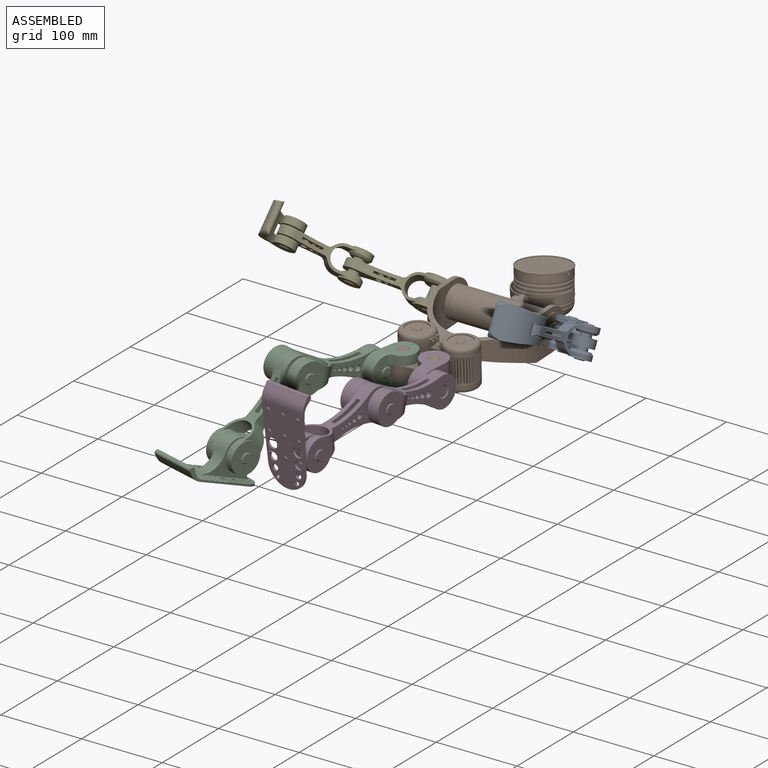
[diagram: assembled view]
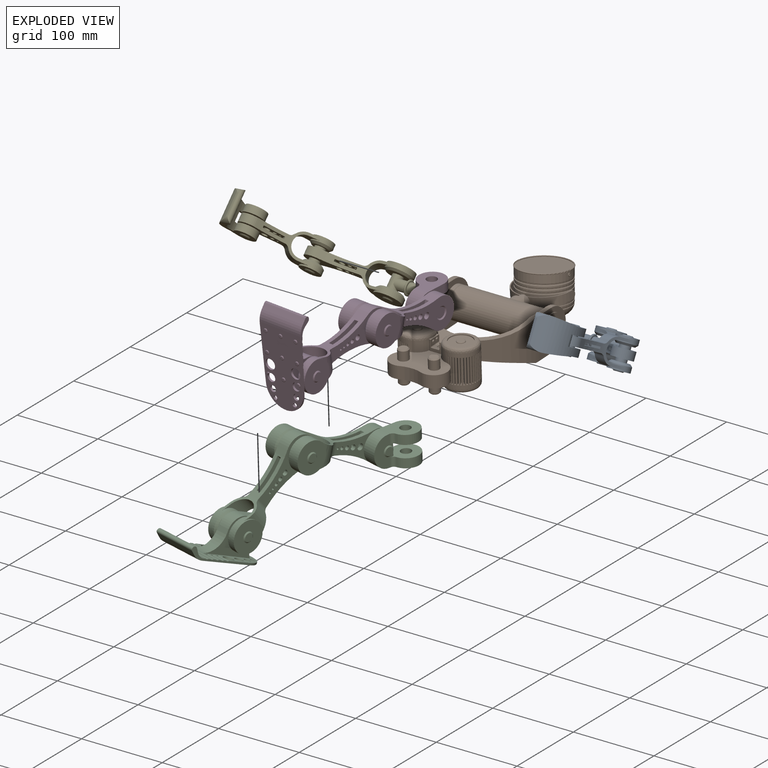
[diagram: exploded view]
GUIDED TOUR — MATED ASSEMBLY WITH SUBASSEMBLIES (Onshape document 589c9226d978e50f89dfb381, AutoMate assembly 589c9226d978e50f89dfb381_f2b97a1aa9fa8e8632975bdd_a0d558a8e1eeb559a8c95289_default)

This assembly has 22 component occurrences arranged in 5 top-level units: 0 individual components plus 5 subassemblies (S0, S1, S2, S3, S4). The tour has two levels: first the top level, where each subassembly is treated as one rigid unit; then each subassembly is toured internally in its own section (nesting deeper than one subassembly level is flattened into its subassembly's section).

Components are labeled P0..P21 across the whole record; subassembly units are labeled S0..S4. A mate is a constraint between two units; its type names the relative motion it leaves free:
  FASTENED — locks the two components together rigidly (no relative motion),
  REVOLUTE — leaves rotation about the listed axis free (a hinge).
Axis/direction vectors are unit vectors and 'through' points are millimeter coordinates, both in the assembly's world frame.

TOP-LEVEL MATES (between units; each subassembly's internal mates are listed in its own section)
  1. REVOLUTE "left_shoulder_sagittal": S0 <-> S1, axis (-1.000, 0.000, 0.000) through (64.13, 0.00, 0.00) mm
  2. REVOLUTE "right_hip_frontal": S1 <-> S2, axis (0.000, -0.043, 0.999) through (-19.05, -145.67, 12.85) mm
  3. REVOLUTE "left_hip_frontal": S1 <-> S3, axis (0.000, -0.043, 0.999) through (19.05, -145.67, 12.85) mm

TOP-LEVEL ASSEMBLY ORDER
  1. S1 — the base component [order heuristic]
  2. S0 [order heuristic]
  3. S2 [order heuristic]
  4. S3 [order heuristic]
  5. S4 [order heuristic]
Order-tag legend:
  [order heuristic] — this assembly is geometrically interlocked (no collision-free removal order exists), so components are listed in mate-graph order; insertion feasibility is not verified.

Of the 22 component occurrences, 2 carry the full construction recipe — the FeatureScript program that regenerates the part's solid from scratch; the rest are supplied as boundary geometry only. Each toured unit is shown spotlighted twice — assembled, then exploded with a leader line back to its socket (green = recipe-attached component, orange = geometry-only, blue = subassembly unit; the rest desaturated gray).
NOTE — document 2 of 3 of this assembly tour. The two overview renders and the header above are repeated from document 1; the component sections below continue where the previous document stopped.
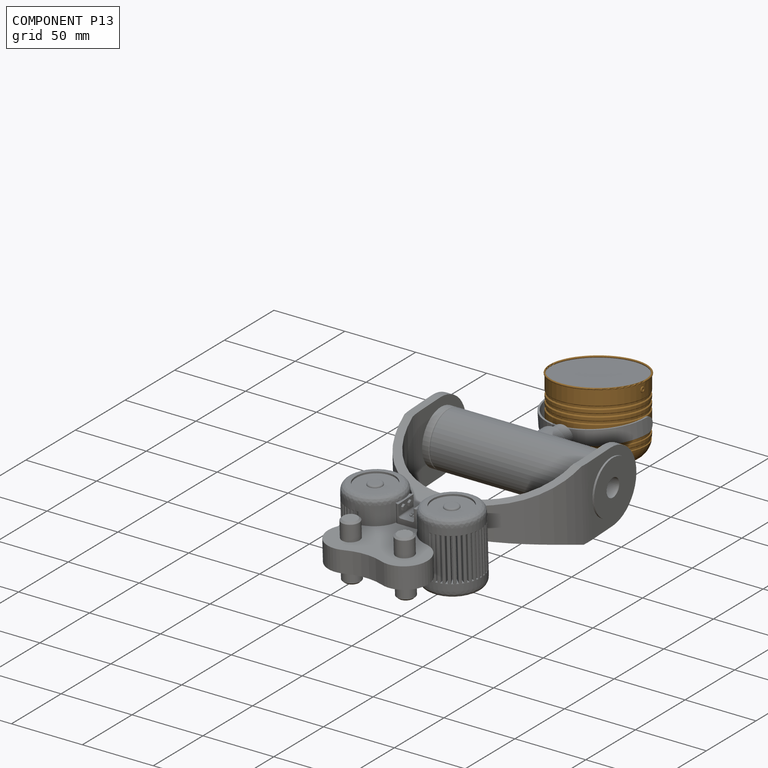
[diagram: component P13 — assembled]
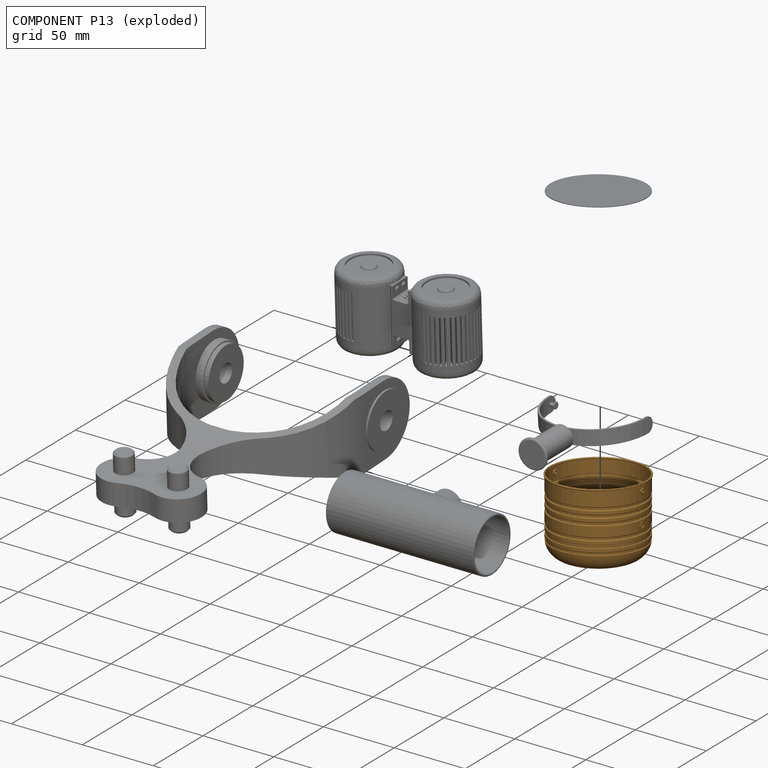
[diagram: component P13 — exploded]
COMPONENT P13 — geometry summary (no construction recipe available for this part):
  bounding box: 68.6 x 68.6 x 51.6 mm
  B-rep topology: 1 solid, 121 faces, 518 edges
  volume: 3530 mm^3 (1% of its bounding box)
  symmetry: 2-fold rotationally symmetric about the y axis; mirror-symmetric across its x mid-plane, z mid-plane
Held by: FASTENED mate "cover_fixed" to P17; REVOLUTE mate "neck_frontal" to P1; REVOLUTE mate "neck_frontal" to P1; FASTENED mate "cover_fixed" to P17.
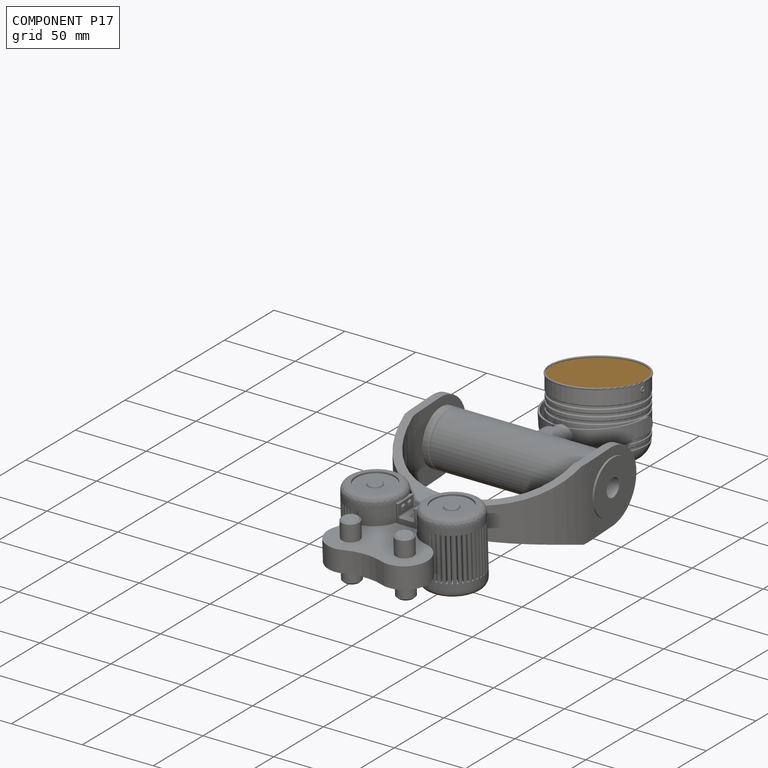
[diagram: component P17 — assembled]
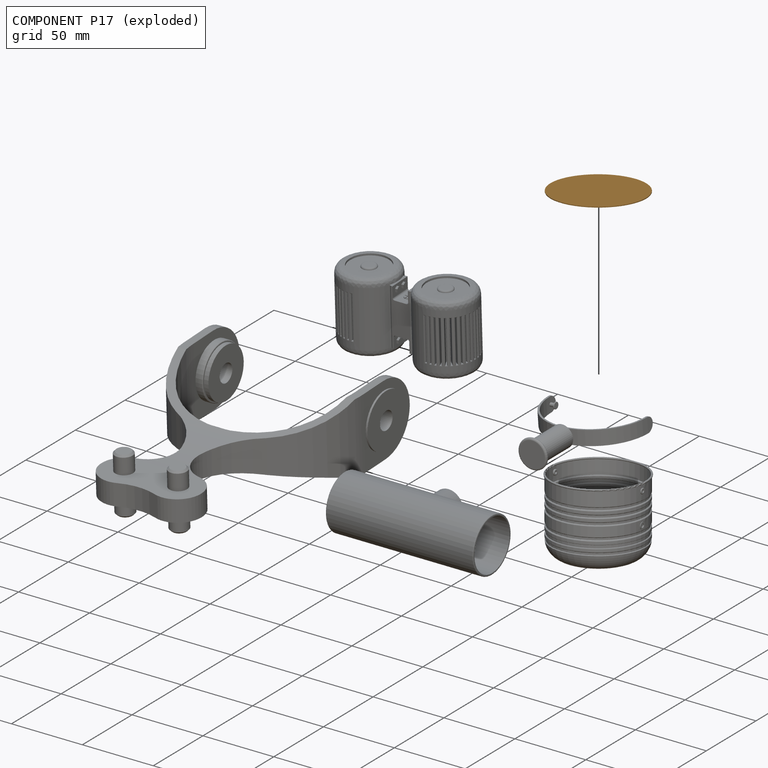
[diagram: component P17 — exploded]
COMPONENT P17 — geometry summary (no construction recipe available for this part):
  bounding box: 62.0 x 62.0 x 0.5 mm
  B-rep topology: 1 solid, 3 faces, 6 edges
  volume: 1533 mm^3 (79% of its bounding box)
  symmetry: 2-fold rotationally symmetric about the x axis; revolution-symmetric about the y axis through its bounding-box center; 2-fold rotationally symmetric about the z axis; mirror-symmetric across its x mid-plane, y mid-plane, z mid-plane
Held by: FASTENED mate "cover_fixed" to P13; FASTENED mate "cover_fixed" to P13.
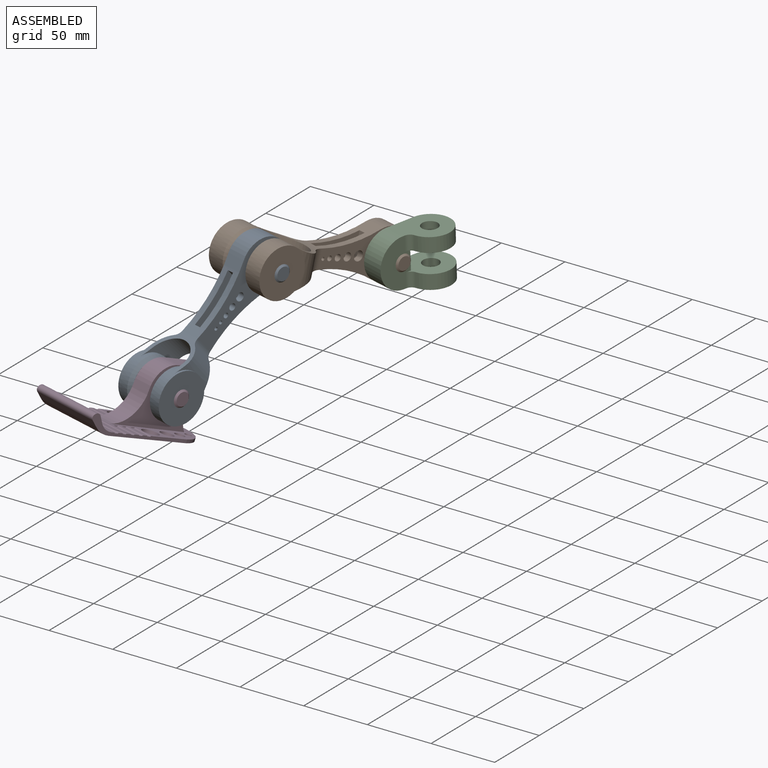
[diagram: subassembly S2 — assembled view]
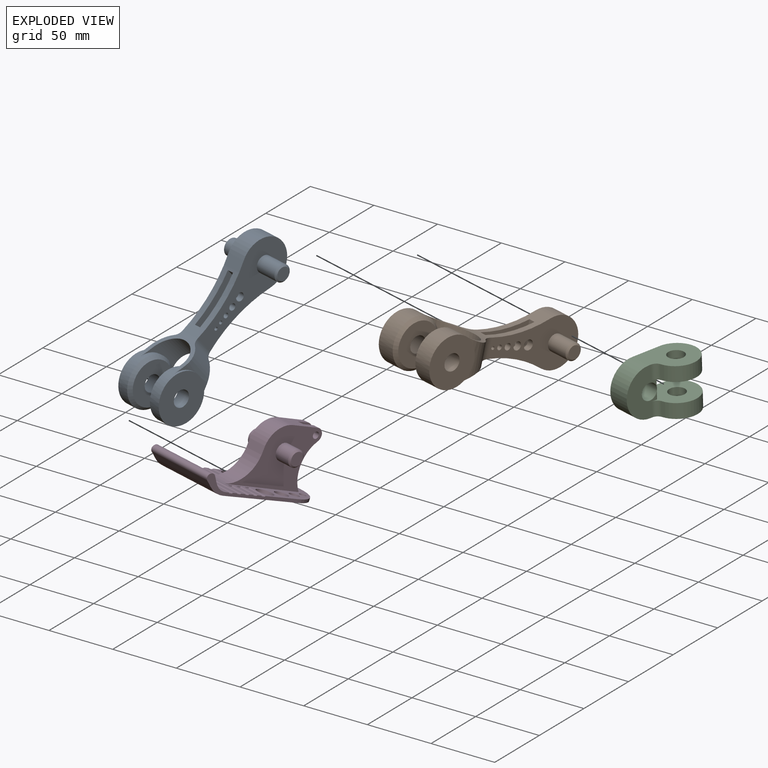
[diagram: subassembly S2 — exploded view]
SUBASSEMBLY S2 TOUR — 4 components, shown here in isolation at its own camera.

INTERNAL MATES
  1. REVOLUTE "right_ankle_sagittal": P2 <-> P14, axis (0.965, -0.263, -0.011) through (-78.04, -340.01, -51.57) mm
  2. REVOLUTE "right_knee_sagittal": P2 <-> P3, axis (-0.965, 0.263, 0.011) through (-100.54, -251.61, 16.36) mm
  3. REVOLUTE "right_hip_sagittal": P3 <-> P7, axis (0.965, -0.263, -0.011) through (-25.07, -166.89, -7.13) mm
  4. REVOLUTE "right_ankle_sagittal": P2 <-> P14, axis (0.965, -0.263, -0.011) through (-78.04, -340.01, -51.57) mm
  5. REVOLUTE "right_knee_sagittal": P2 <-> P3, axis (-0.965, 0.263, 0.011) through (-100.54, -251.61, 16.36) mm
  6. REVOLUTE "right_hip_sagittal": P3 <-> P7, axis (0.965, -0.263, -0.011) through (-25.07, -166.89, -7.13) mm

ASSEMBLY ORDER (within the subassembly)
  1. P2 — the base component [order heuristic]
  2. P3 [order heuristic]
  3. P14 [order heuristic]
  4. P7 [order heuristic]
Order-tag legend:
  [order heuristic] — this assembly is geometrically interlocked (no collision-free removal order exists), so components are listed in mate-graph order; insertion feasibility is not verified.
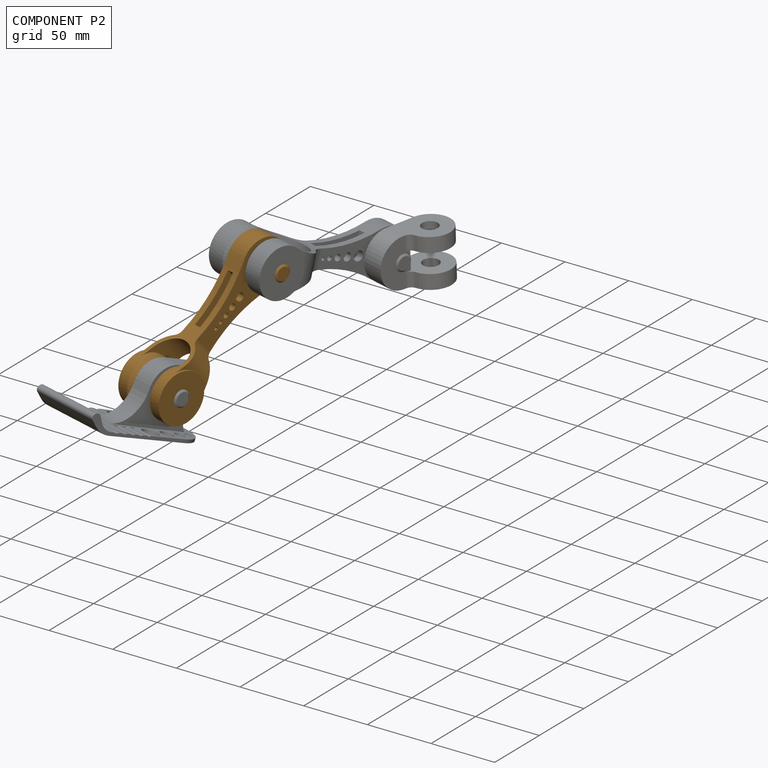
[diagram: component P2 — assembled]
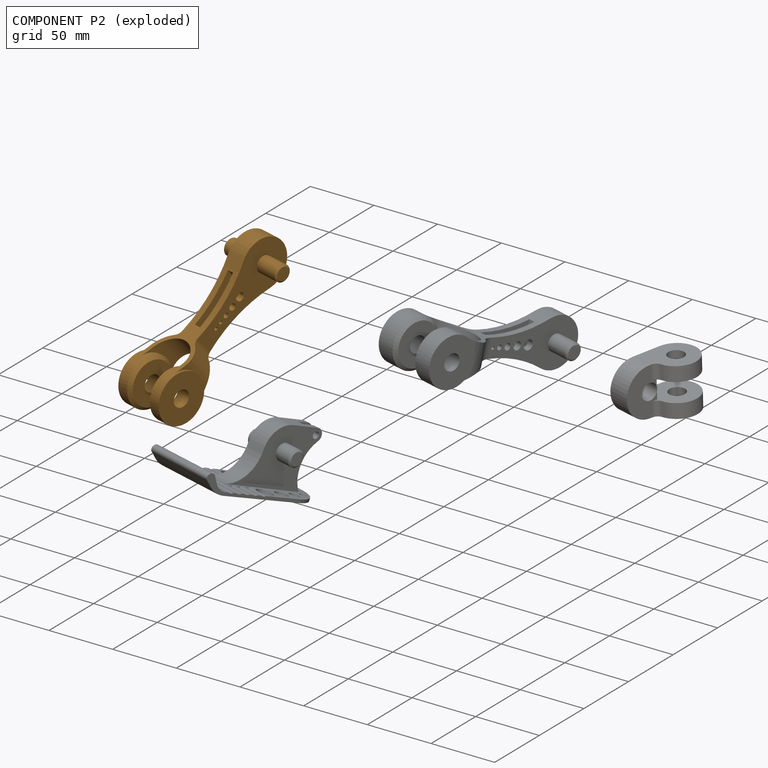
[diagram: component P2 — exploded]
COMPONENT P2 — geometry summary (no construction recipe available for this part):
  bounding box: 142.2 x 53.3 x 38.1 mm
  B-rep topology: 1 solid, 48 faces, 250 edges
  volume: 57555 mm^3 (20% of its bounding box)
  symmetry: 2-fold rotationally symmetric about the z axis; mirror-symmetric across its x mid-plane, y mid-plane
Held by: REVOLUTE mate "right_ankle_sagittal" to P14; REVOLUTE mate "right_knee_sagittal" to P3; REVOLUTE mate "right_ankle_sagittal" to P14; REVOLUTE mate "right_knee_sagittal" to P3.
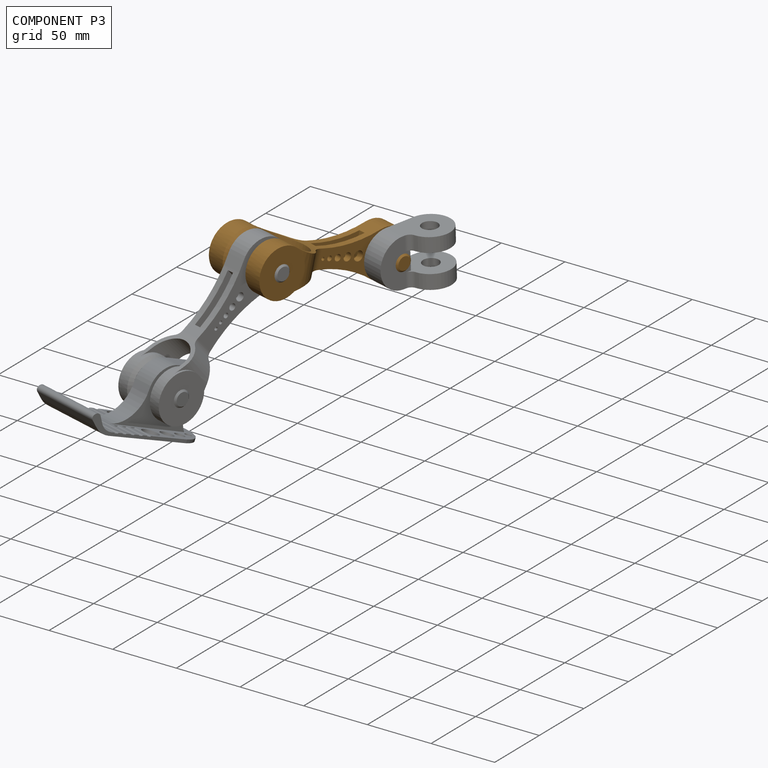
[diagram: component P3 — assembled]
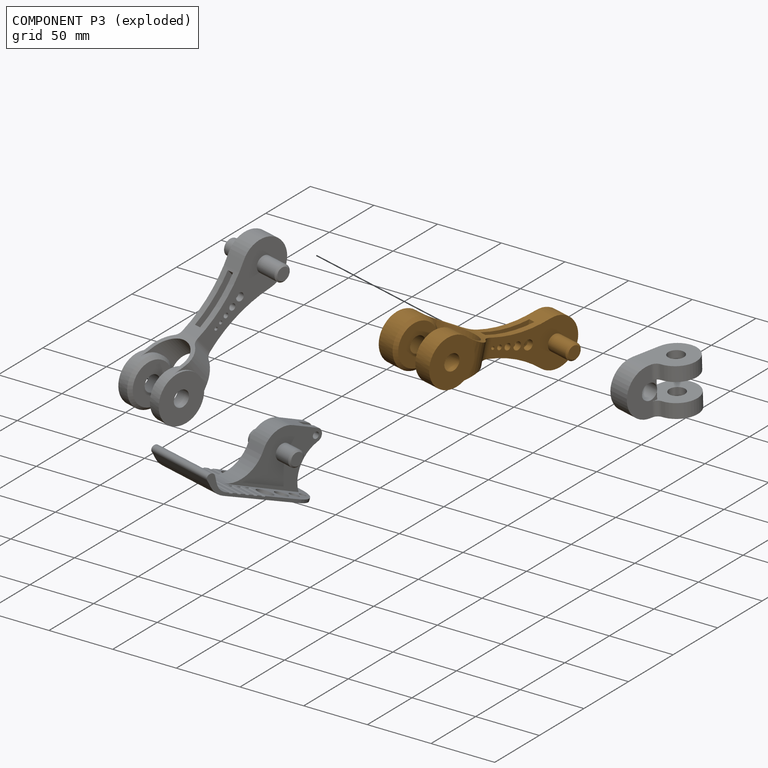
[diagram: component P3 — exploded]
COMPONENT P3 — geometry summary (no construction recipe available for this part):
  bounding box: 142.3 x 52.1 x 38.2 mm
  B-rep topology: 1 solid, 47 faces, 246 edges
  volume: 64594 mm^3 (23% of its bounding box)
  symmetry: mirror-symmetric across its y mid-plane
Held by: REVOLUTE mate "right_knee_sagittal" to P2; REVOLUTE mate "right_hip_sagittal" to P7; REVOLUTE mate "right_knee_sagittal" to P2; REVOLUTE mate "right_hip_sagittal" to P7.
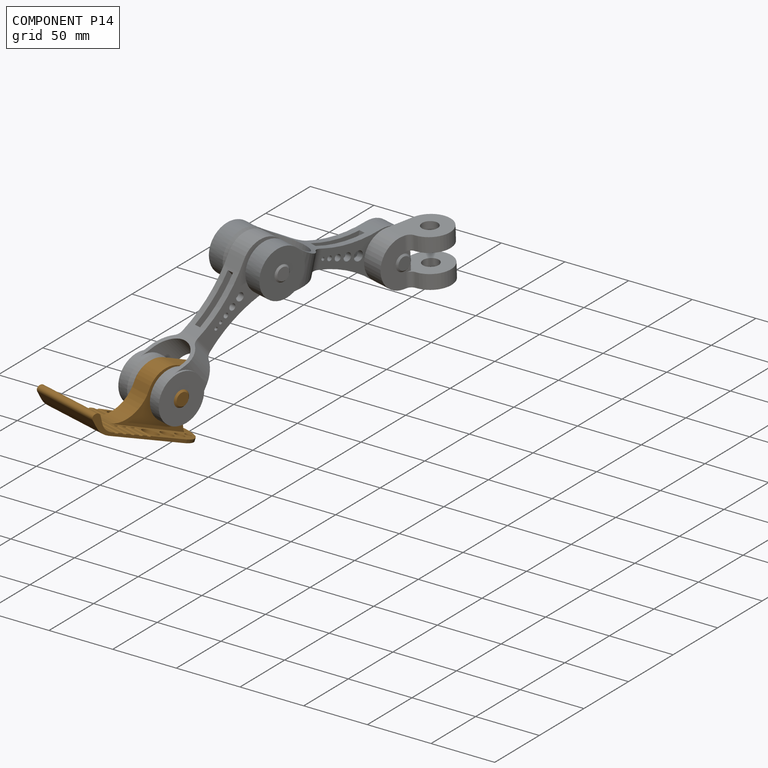
[diagram: component P14 — assembled]
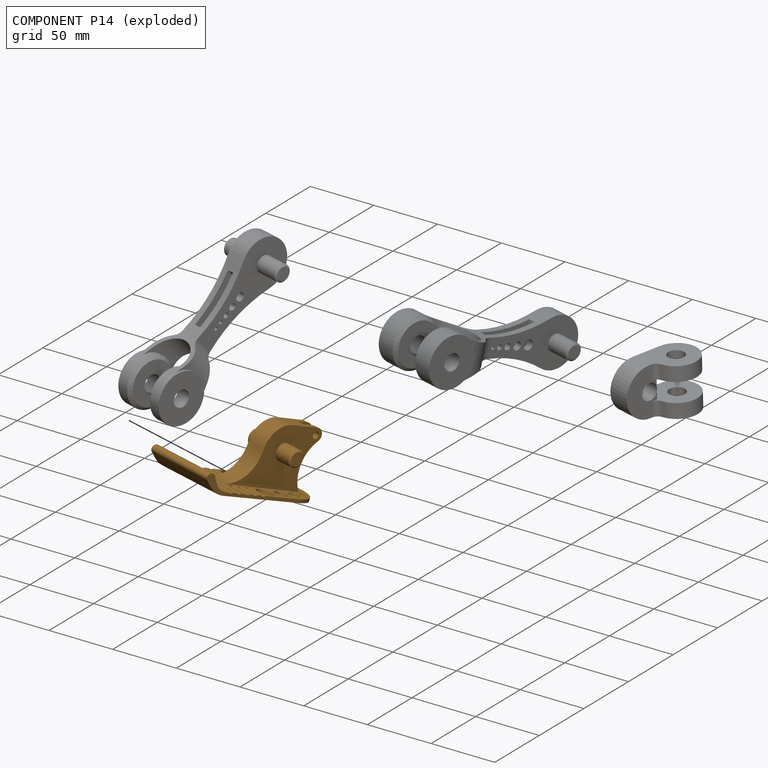
[diagram: component P14 — exploded]
COMPONENT P14 — geometry summary (no construction recipe available for this part):
  bounding box: 113.0 x 55.9 x 47.5 mm
  B-rep topology: 1 solid, 97 faces, 534 edges
  volume: 46412 mm^3 (15% of its bounding box)
  symmetry: mirror-symmetric across its x mid-plane
Held by: REVOLUTE mate "right_ankle_sagittal" to P2; REVOLUTE mate "right_ankle_sagittal" to P2.
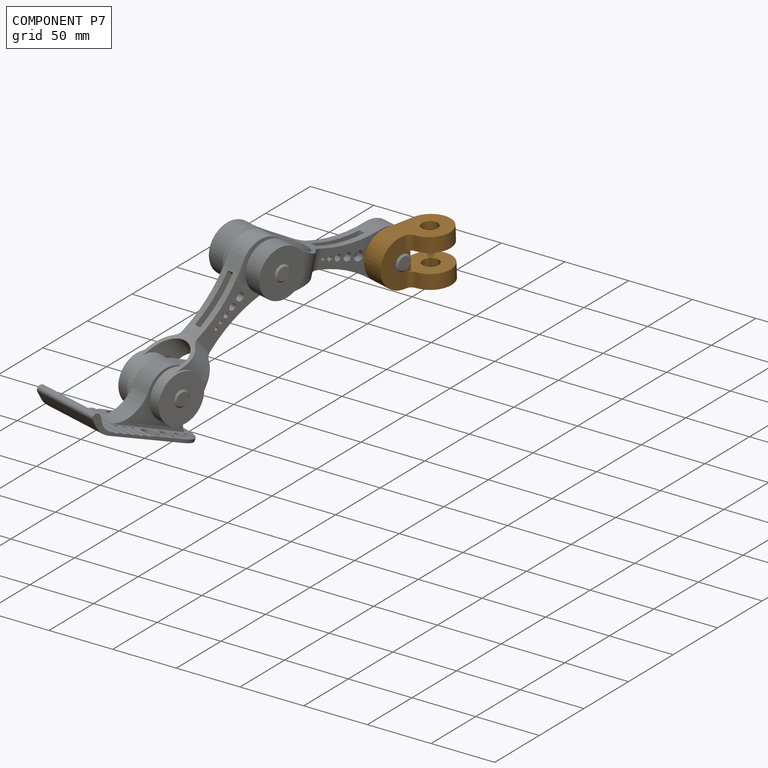
[diagram: component P7 — assembled]
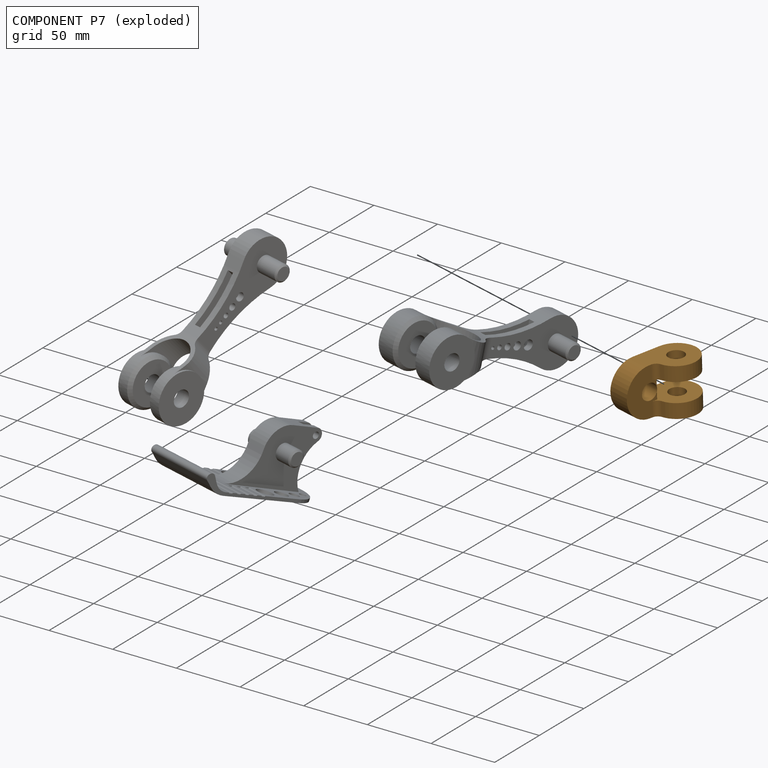
[diagram: component P7 — exploded]
COMPONENT P7 — geometry summary (no construction recipe available for this part):
  bounding box: 58.4 x 38.1 x 33.0 mm
  B-rep topology: 1 solid, 20 faces, 112 edges
  volume: 30275 mm^3 (41% of its bounding box)
  symmetry: mirror-symmetric across its y mid-plane
Held by: REVOLUTE mate "right_hip_sagittal" to P3; REVOLUTE mate "right_hip_sagittal" to P3.
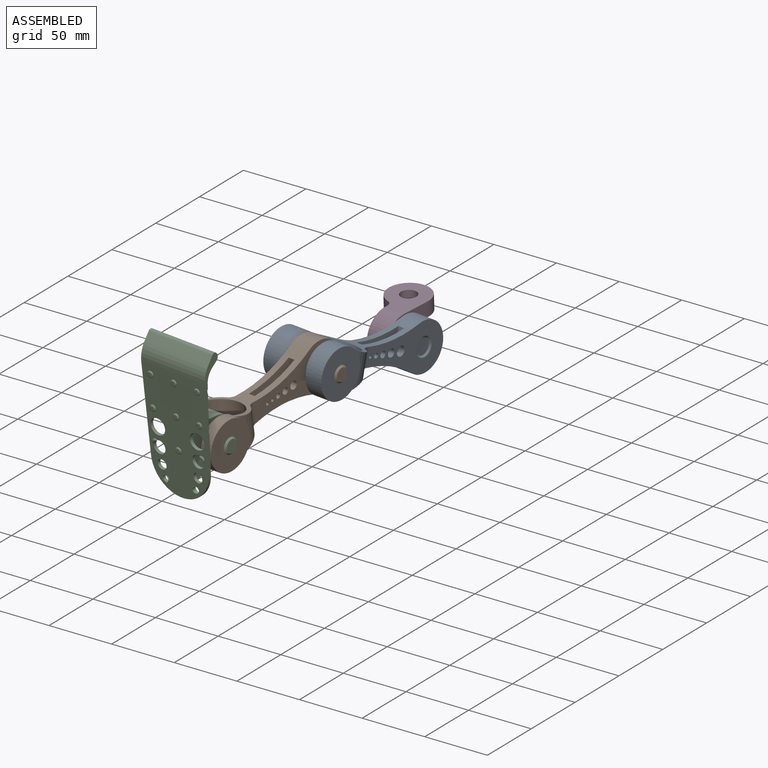
[diagram: subassembly S3 — assembled view]
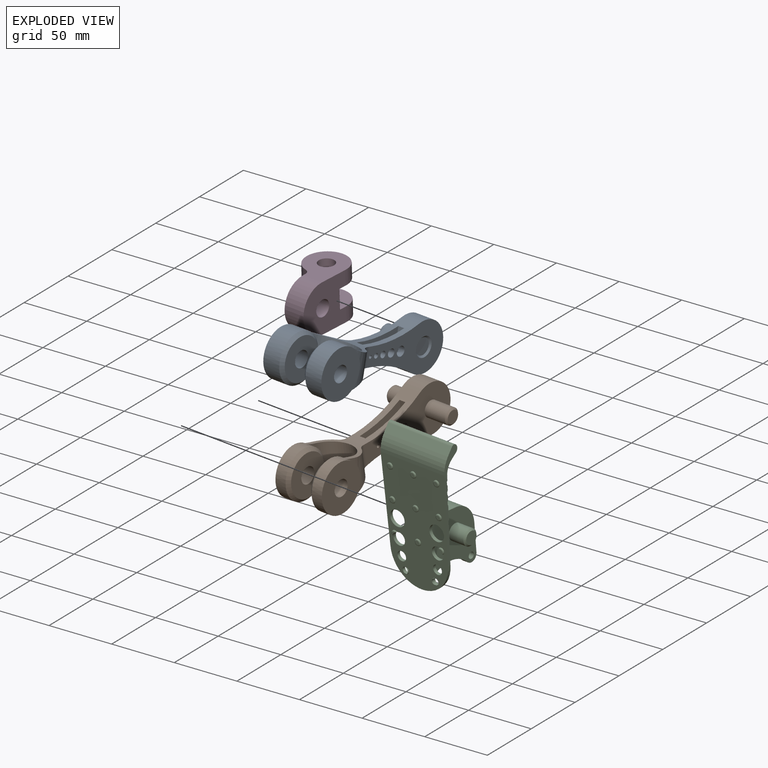
[diagram: subassembly S3 — exploded view]
SUBASSEMBLY S3 TOUR — 4 components, shown here in isolation at its own camera.

INTERNAL MATES
  1. REVOLUTE "left_hip_sagittal": P5 <-> P21, axis (-0.993, 0.117, 0.005) through (16.38, -167.54, -7.15) mm
  2. REVOLUTE "left_ankle_sagittal": P6 <-> P19, axis (0.993, -0.117, -0.005) through (37.96, -376.01, -3.43) mm
  3. REVOLUTE "left_knee_sagittal": P6 <-> P5, axis (0.993, -0.117, -0.005) through (55.06, -274.67, 14.13) mm
  4. REVOLUTE "left_ankle_sagittal": P6 <-> P19, axis (0.993, -0.117, -0.005) through (37.96, -376.01, -3.43) mm
  5. REVOLUTE "left_hip_sagittal": P5 <-> P21, axis (-0.993, 0.117, 0.005) through (16.38, -167.54, -7.15) mm
  6. REVOLUTE "left_knee_sagittal": P6 <-> P5, axis (0.993, -0.117, -0.005) through (55.06, -274.67, 14.13) mm

ASSEMBLY ORDER (within the subassembly)
  1. P5 — the base component [order heuristic]
  2. P6 [order heuristic]
  3. P21 [order heuristic]
  4. P19 [order heuristic]
Order-tag legend:
  [order heuristic] — this assembly is geometrically interlocked (no collision-free removal order exists), so components are listed in mate-graph order; insertion feasibility is not verified.
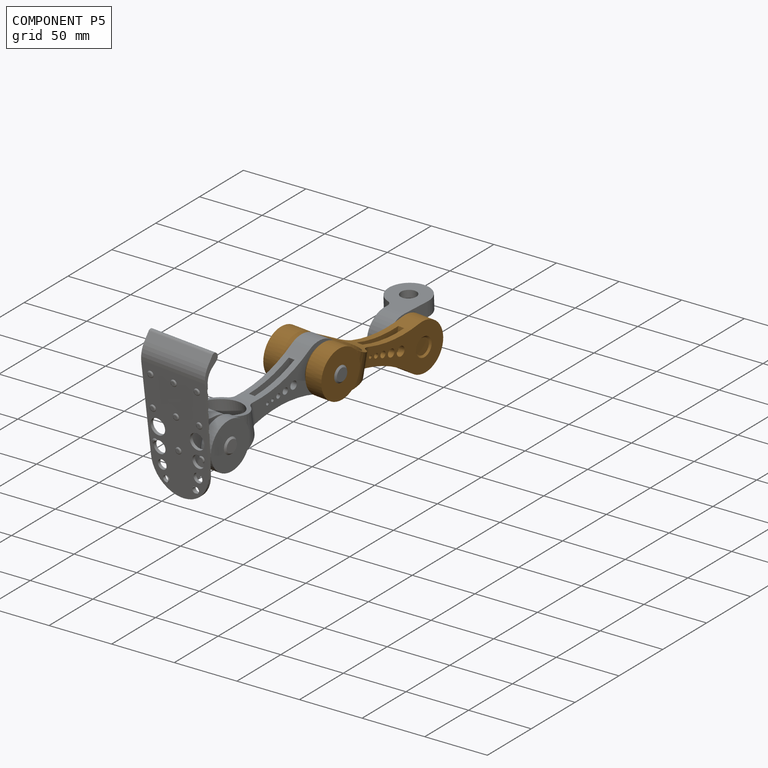
[diagram: component P5 — assembled]
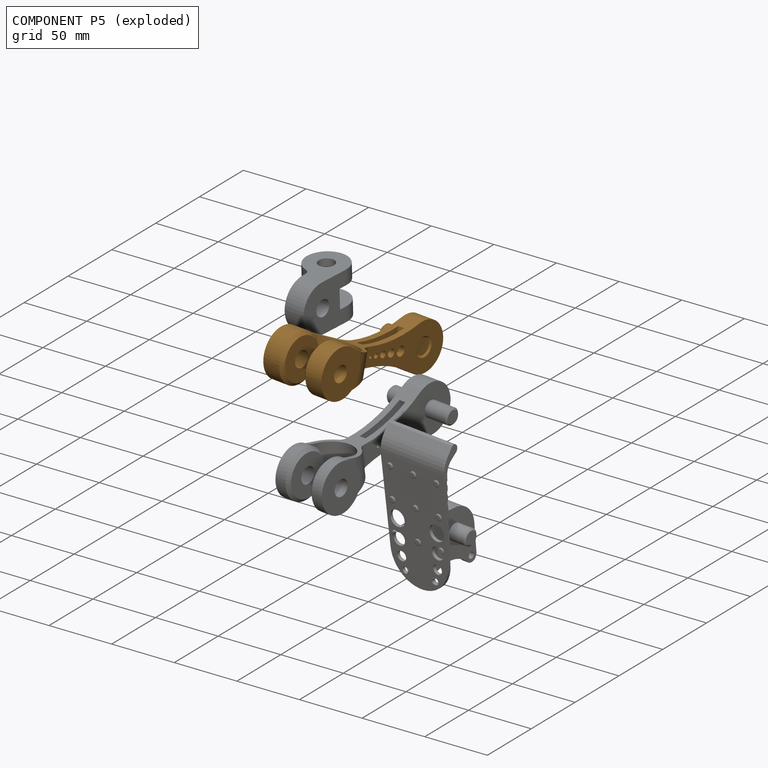
[diagram: component P5 — exploded]
COMPONENT P5 — geometry summary (no construction recipe available for this part):
  bounding box: 142.3 x 52.1 x 38.2 mm
  B-rep topology: 1 solid, 47 faces, 246 edges
  volume: 64594 mm^3 (23% of its bounding box)
  symmetry: mirror-symmetric across its y mid-plane
Held by: REVOLUTE mate "left_hip_sagittal" to P21; REVOLUTE mate "left_knee_sagittal" to P6; REVOLUTE mate "left_hip_sagittal" to P21; REVOLUTE mate "left_knee_sagittal" to P6.
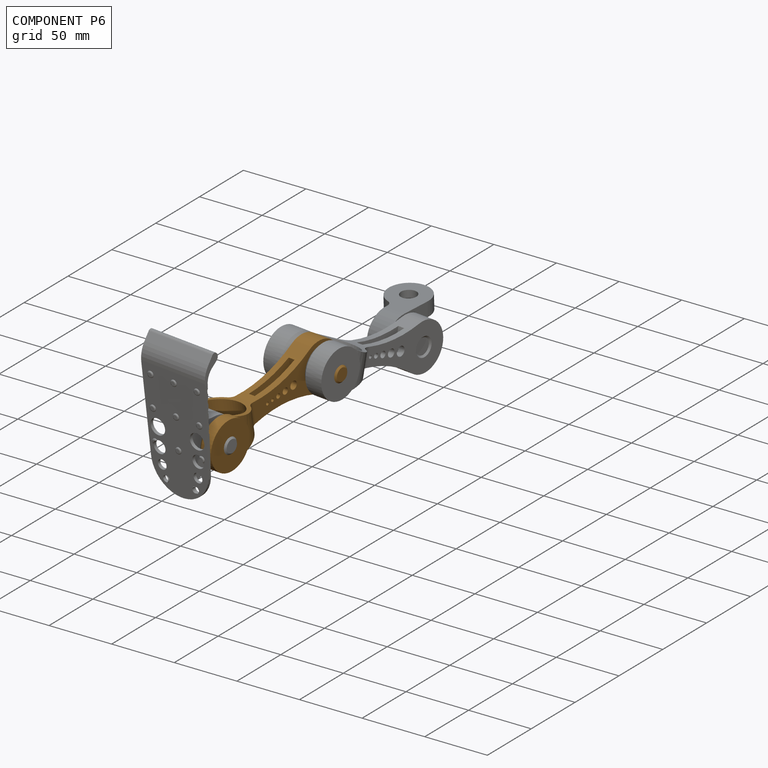
[diagram: component P6 — assembled]
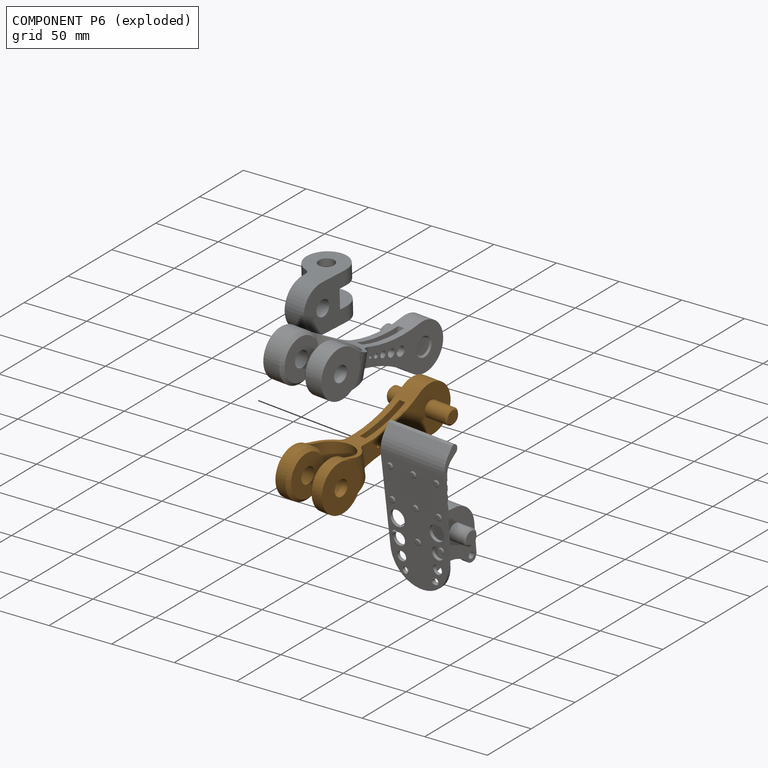
[diagram: component P6 — exploded]
COMPONENT P6 — geometry summary (no construction recipe available for this part):
  bounding box: 142.2 x 53.3 x 38.1 mm
  B-rep topology: 1 solid, 48 faces, 250 edges
  volume: 57555 mm^3 (20% of its bounding box)
  symmetry: 2-fold rotationally symmetric about the z axis; mirror-symmetric across its x mid-plane, y mid-plane
Held by: REVOLUTE mate "left_ankle_sagittal" to P19; REVOLUTE mate "left_knee_sagittal" to P5; REVOLUTE mate "left_ankle_sagittal" to P19; REVOLUTE mate "left_knee_sagittal" to P5.
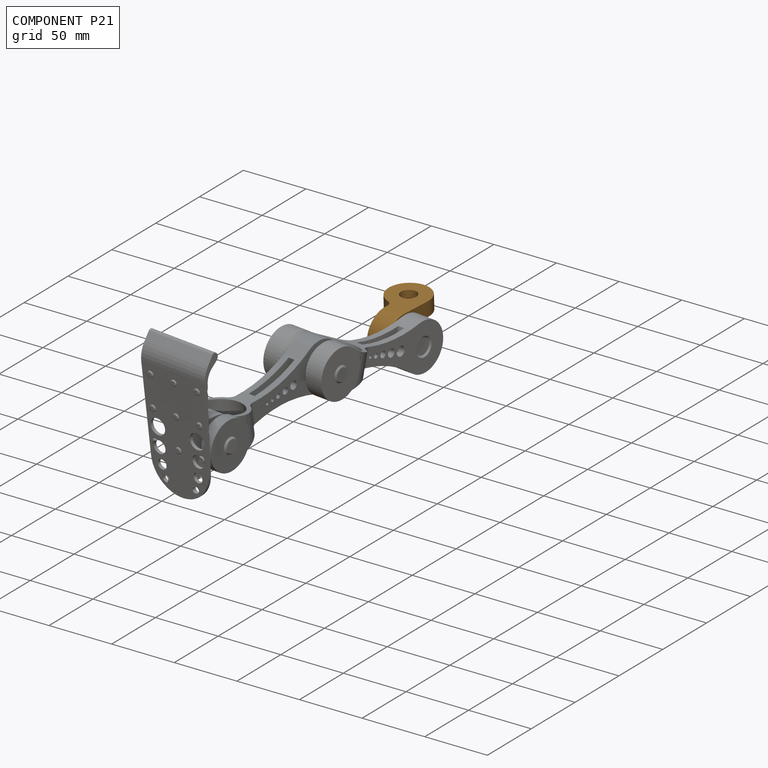
[diagram: component P21 — assembled]
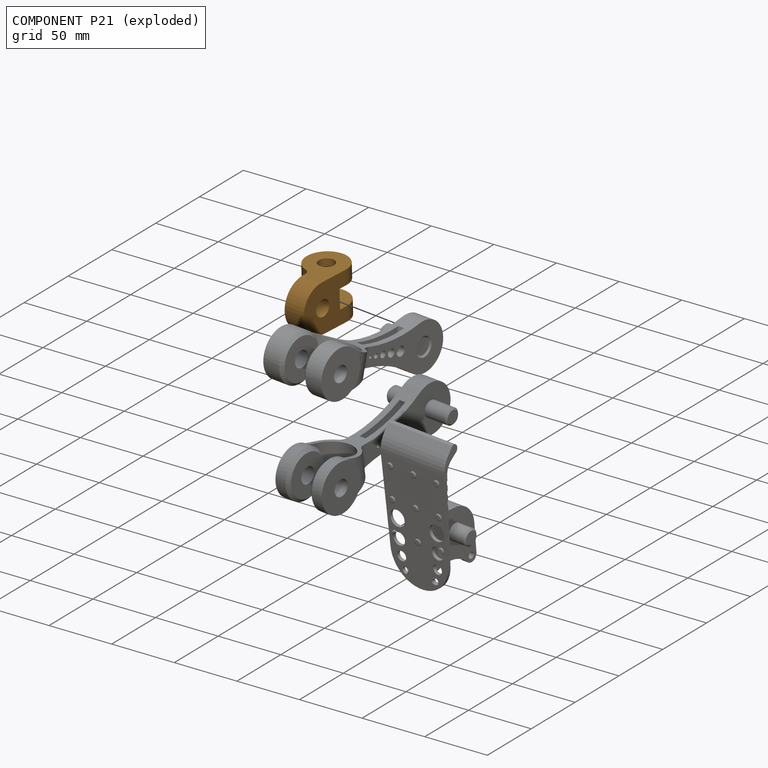
[diagram: component P21 — exploded]
COMPONENT P21 — geometry summary (no construction recipe available for this part):
  bounding box: 58.4 x 38.1 x 33.0 mm
  B-rep topology: 1 solid, 20 faces, 112 edges
  volume: 30275 mm^3 (41% of its bounding box)
  symmetry: mirror-symmetric across its y mid-plane
Held by: REVOLUTE mate "left_hip_sagittal" to P5; REVOLUTE mate "left_hip_sagittal" to P5.
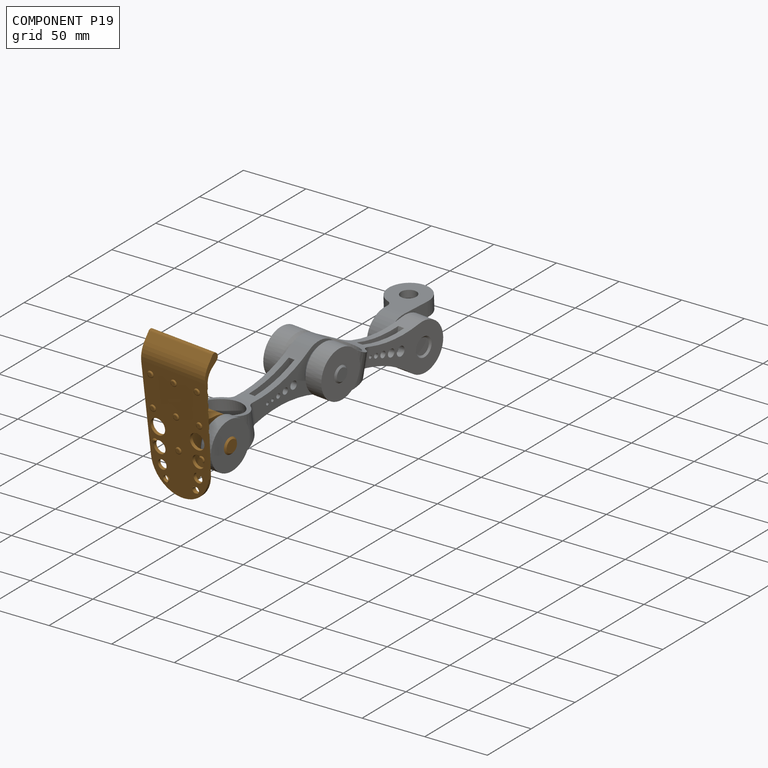
[diagram: component P19 — assembled]
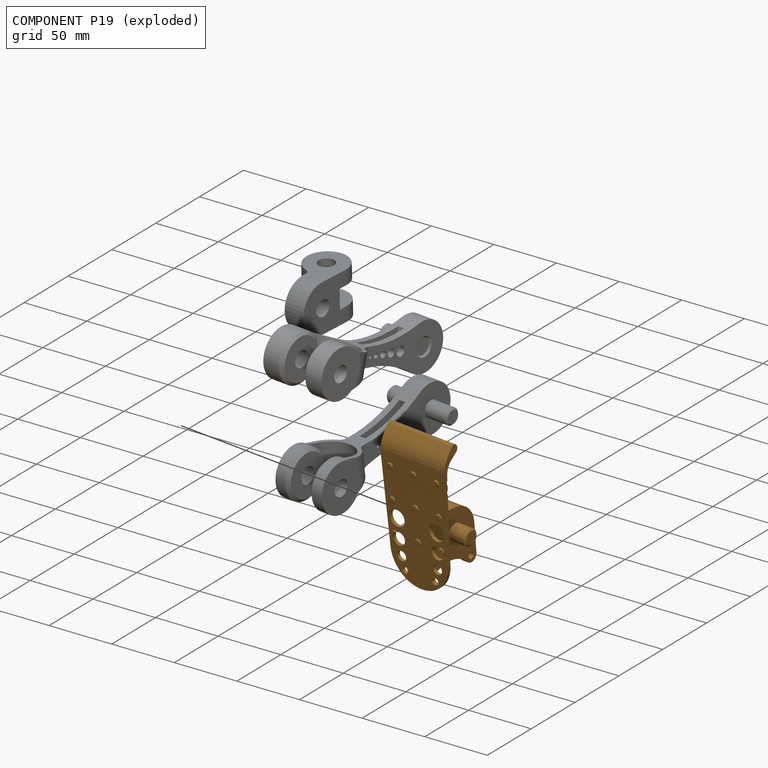
[diagram: component P19 — exploded]
COMPONENT P19 — geometry summary (no construction recipe available for this part):
  bounding box: 113.0 x 55.9 x 47.5 mm
  B-rep topology: 1 solid, 97 faces, 534 edges
  volume: 46412 mm^3 (15% of its bounding box)
  symmetry: mirror-symmetric across its x mid-plane
Held by: REVOLUTE mate "left_ankle_sagittal" to P6; REVOLUTE mate "left_ankle_sagittal" to P6.
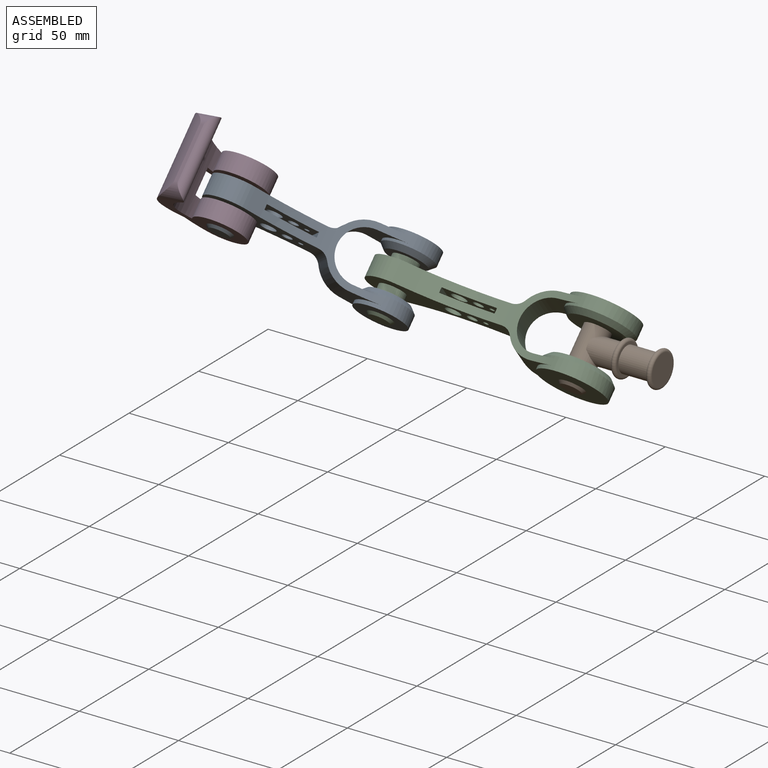
[diagram: subassembly S4 — assembled view]
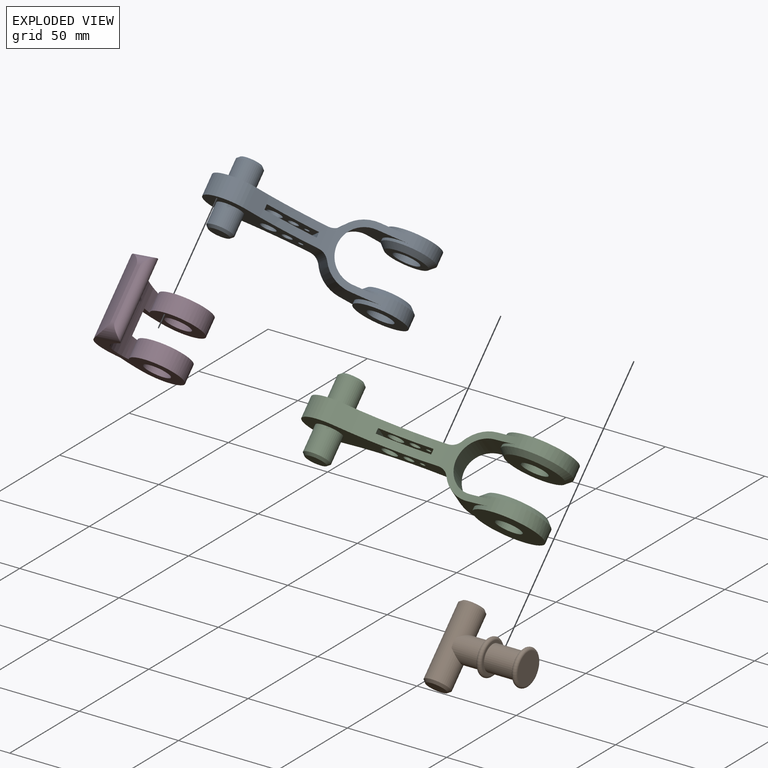
[diagram: subassembly S4 — exploded view]
SUBASSEMBLY S4 TOUR — 4 components, shown here in isolation at its own camera.

INTERNAL MATES
  1. REVOLUTE "right_shoulder_frontal": P16 <-> P18, axis (0.000, 0.699, 0.715) through (-83.19, 12.43, 12.72) mm
  2. REVOLUTE "right_elbow_frontal": P18 <-> P9, axis (0.000, -0.699, -0.715) through (-169.91, -1.57, 26.39) mm
  3. REVOLUTE "right_wrist_frontal": P9 <-> P20, axis (0.000, 0.699, 0.715) through (-225.79, -47.49, 53.51) mm
  4. REVOLUTE "right_wrist_frontal": P9 <-> P20, axis (0.000, 0.699, 0.715) through (-225.79, -47.49, 53.51) mm
  5. REVOLUTE "right_elbow_frontal": P18 <-> P9, axis (0.000, -0.699, -0.715) through (-169.91, -1.57, 26.39) mm
  6. REVOLUTE "right_shoulder_frontal": P16 <-> P18, axis (0.000, 0.699, 0.715) through (-83.19, 12.43, 12.72) mm

ASSEMBLY ORDER (within the subassembly)
  1. P9 — the base component [order heuristic]
  2. P18 [order heuristic]
  3. P20 [order heuristic]
  4. P16 [order heuristic]
Order-tag legend:
  [order heuristic] — this assembly is geometrically interlocked (no collision-free removal order exists), so components are listed in mate-graph order; insertion feasibility is not verified.
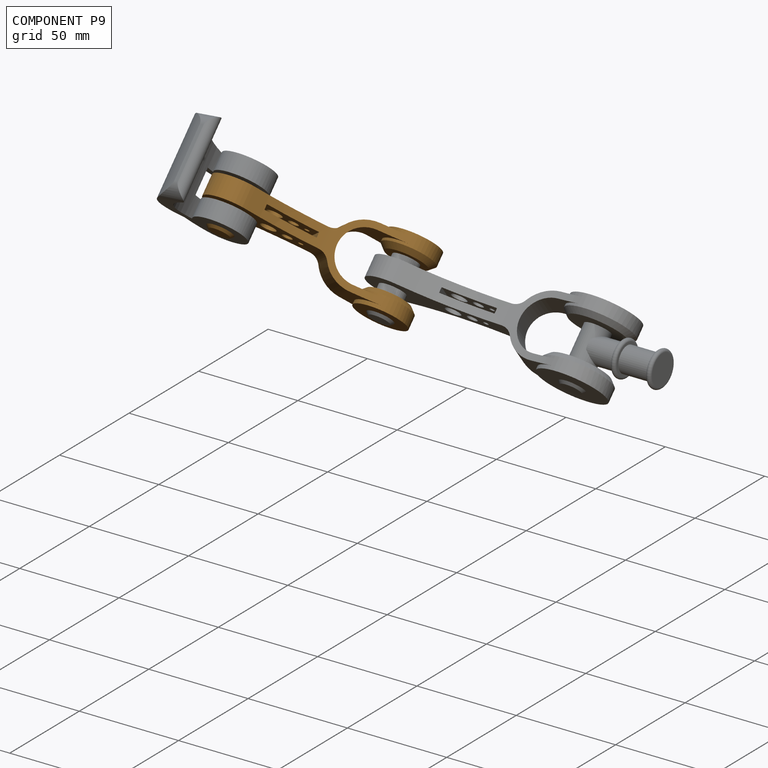
[diagram: component P9 — assembled]
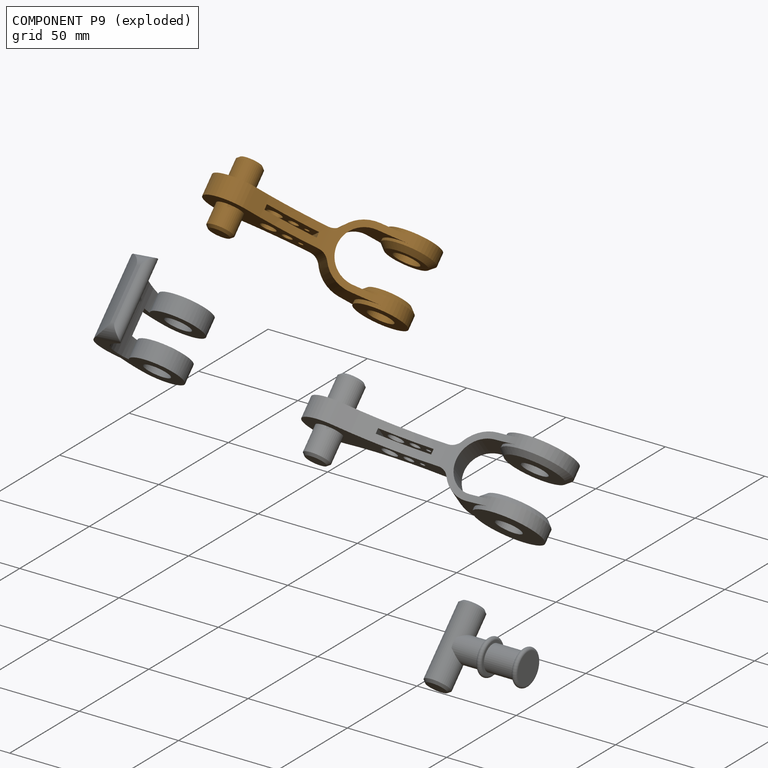
[diagram: component P9 — exploded]
COMPONENT P9 — geometry summary (no construction recipe available for this part):
  bounding box: 101.6 x 35.6 x 25.4 mm
  B-rep topology: 1 solid, 40 faces, 200 edges
  volume: 20757 mm^3 (23% of its bounding box)
  symmetry: 2-fold rotationally symmetric about the z axis; mirror-symmetric across its x mid-plane, y mid-plane
Held by: REVOLUTE mate "right_elbow_frontal" to P18; REVOLUTE mate "right_wrist_frontal" to P20; REVOLUTE mate "right_wrist_frontal" to P20; REVOLUTE mate "right_elbow_frontal" to P18.
